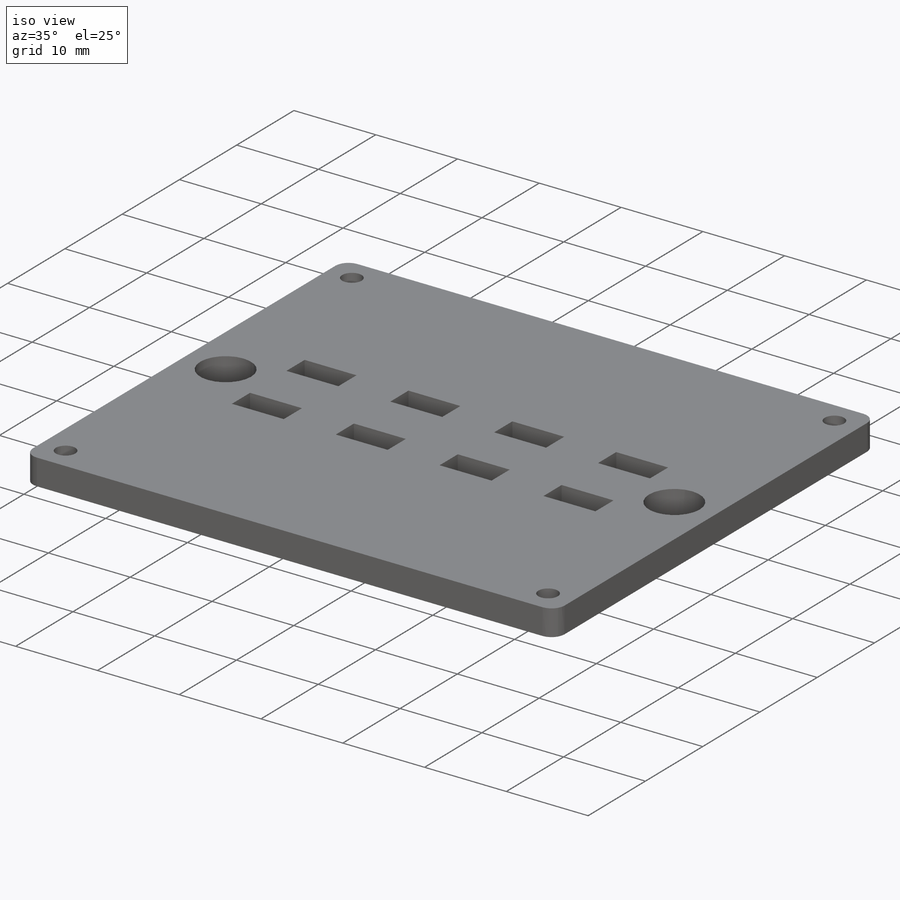
[diagram: iso view]
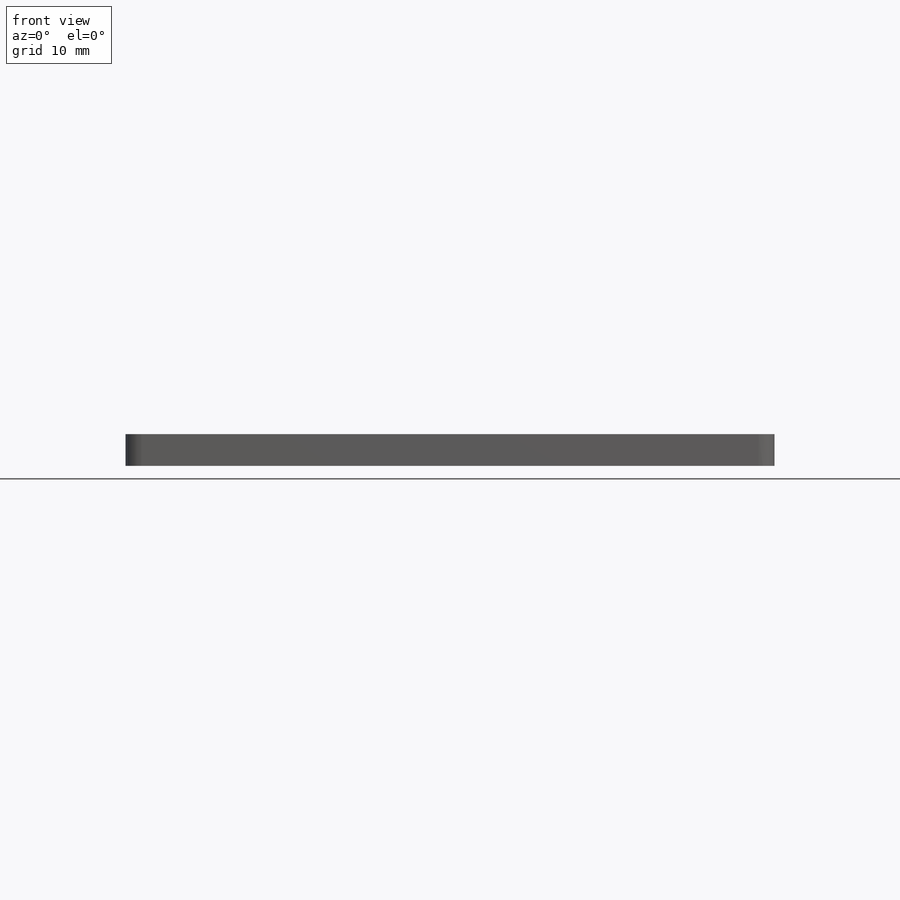
[diagram: front view]
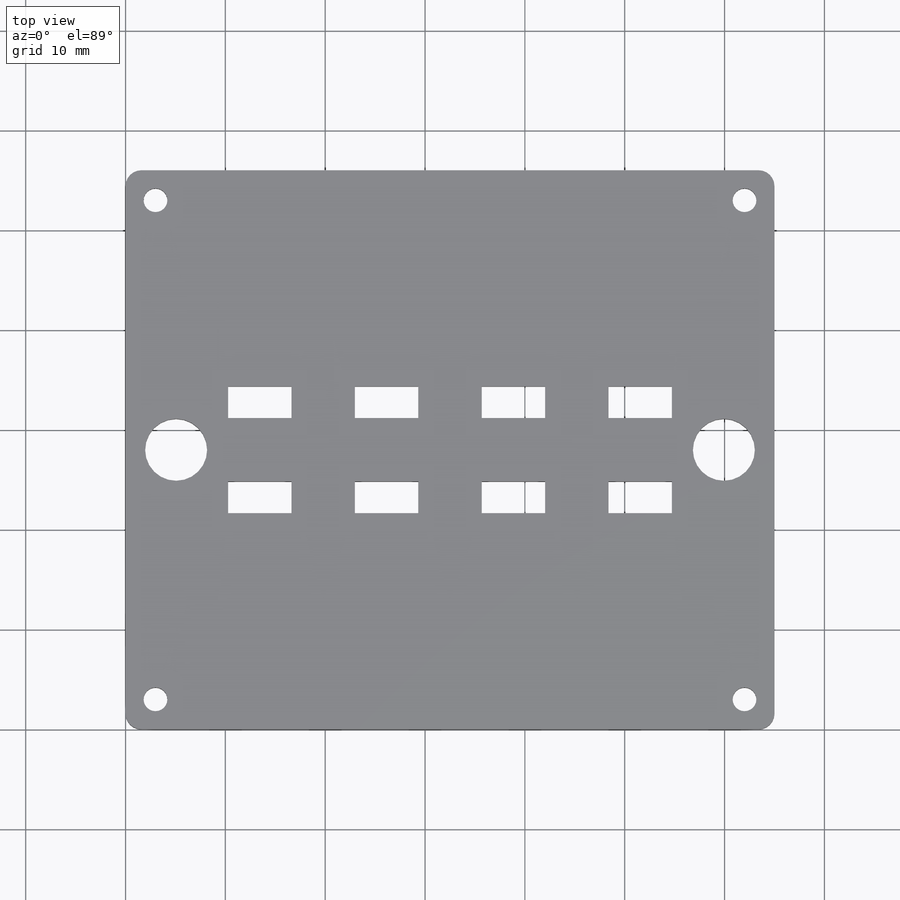
[diagram: top view]
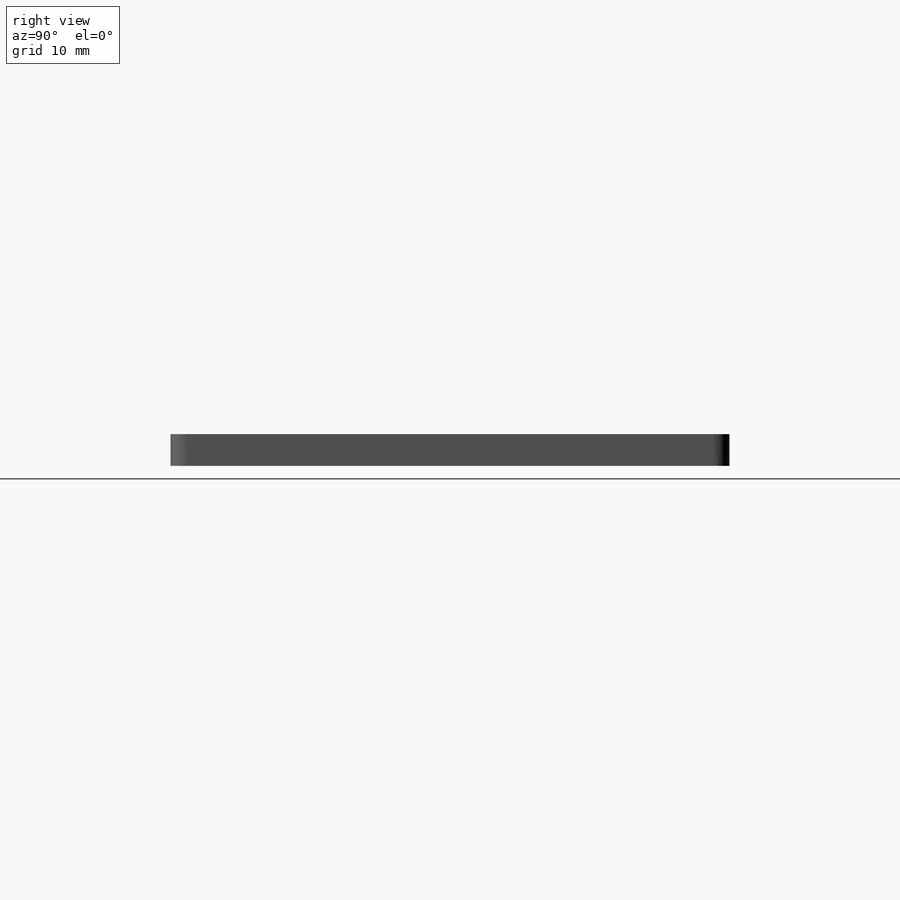
[diagram: right view]
SOLIDWORKS PART (.sldprt)
format: sldprt  version: not decoded by parser v0  size: 273,408 bytes
history: native  units: mm
features: sketch x3, cut_extrude x2, material x1, extrude x1, fillet x1 (+12 scaffold rows collapsed)
feature tree (20):
  scaffold x12  (default folders/planes/origin — collapsed)
  material  "Material <not specified>"
  sketch  "Sketch1"  dims[D1=65.0mm D2=56.0mm]
  extrude  "Boss-Extrude1"  Depth=3.175mm
  sketch  "Sketch2"  dims[c1.D1=3.0mm c1.D2=3.0mm c1.D3=6.35mm c1.D4=6.35mm c1.D5=3.175mm c1.D6=6.35mm c1.D7=2.794mm c1.D8=3.175mm c1.D9=0.0mm c1.D10=0.0mm c1.D11=19.05mm c2.D7=3.175mm c2.D11=0.0mm]
  cut_extrude  "Cut-Extrude1"  Depth=3.175mm
  fillet  "Fillet1"  Radius=1.5875mm
  sketch  "Sketch3"
  cut_extrude  "Cut-Extrude2"  Depth=3.175mm
decode coverage: 6 of 7 modeling features carry decoded parameters
note: suppression state not decoded; provenance and decode notes live in map.json
